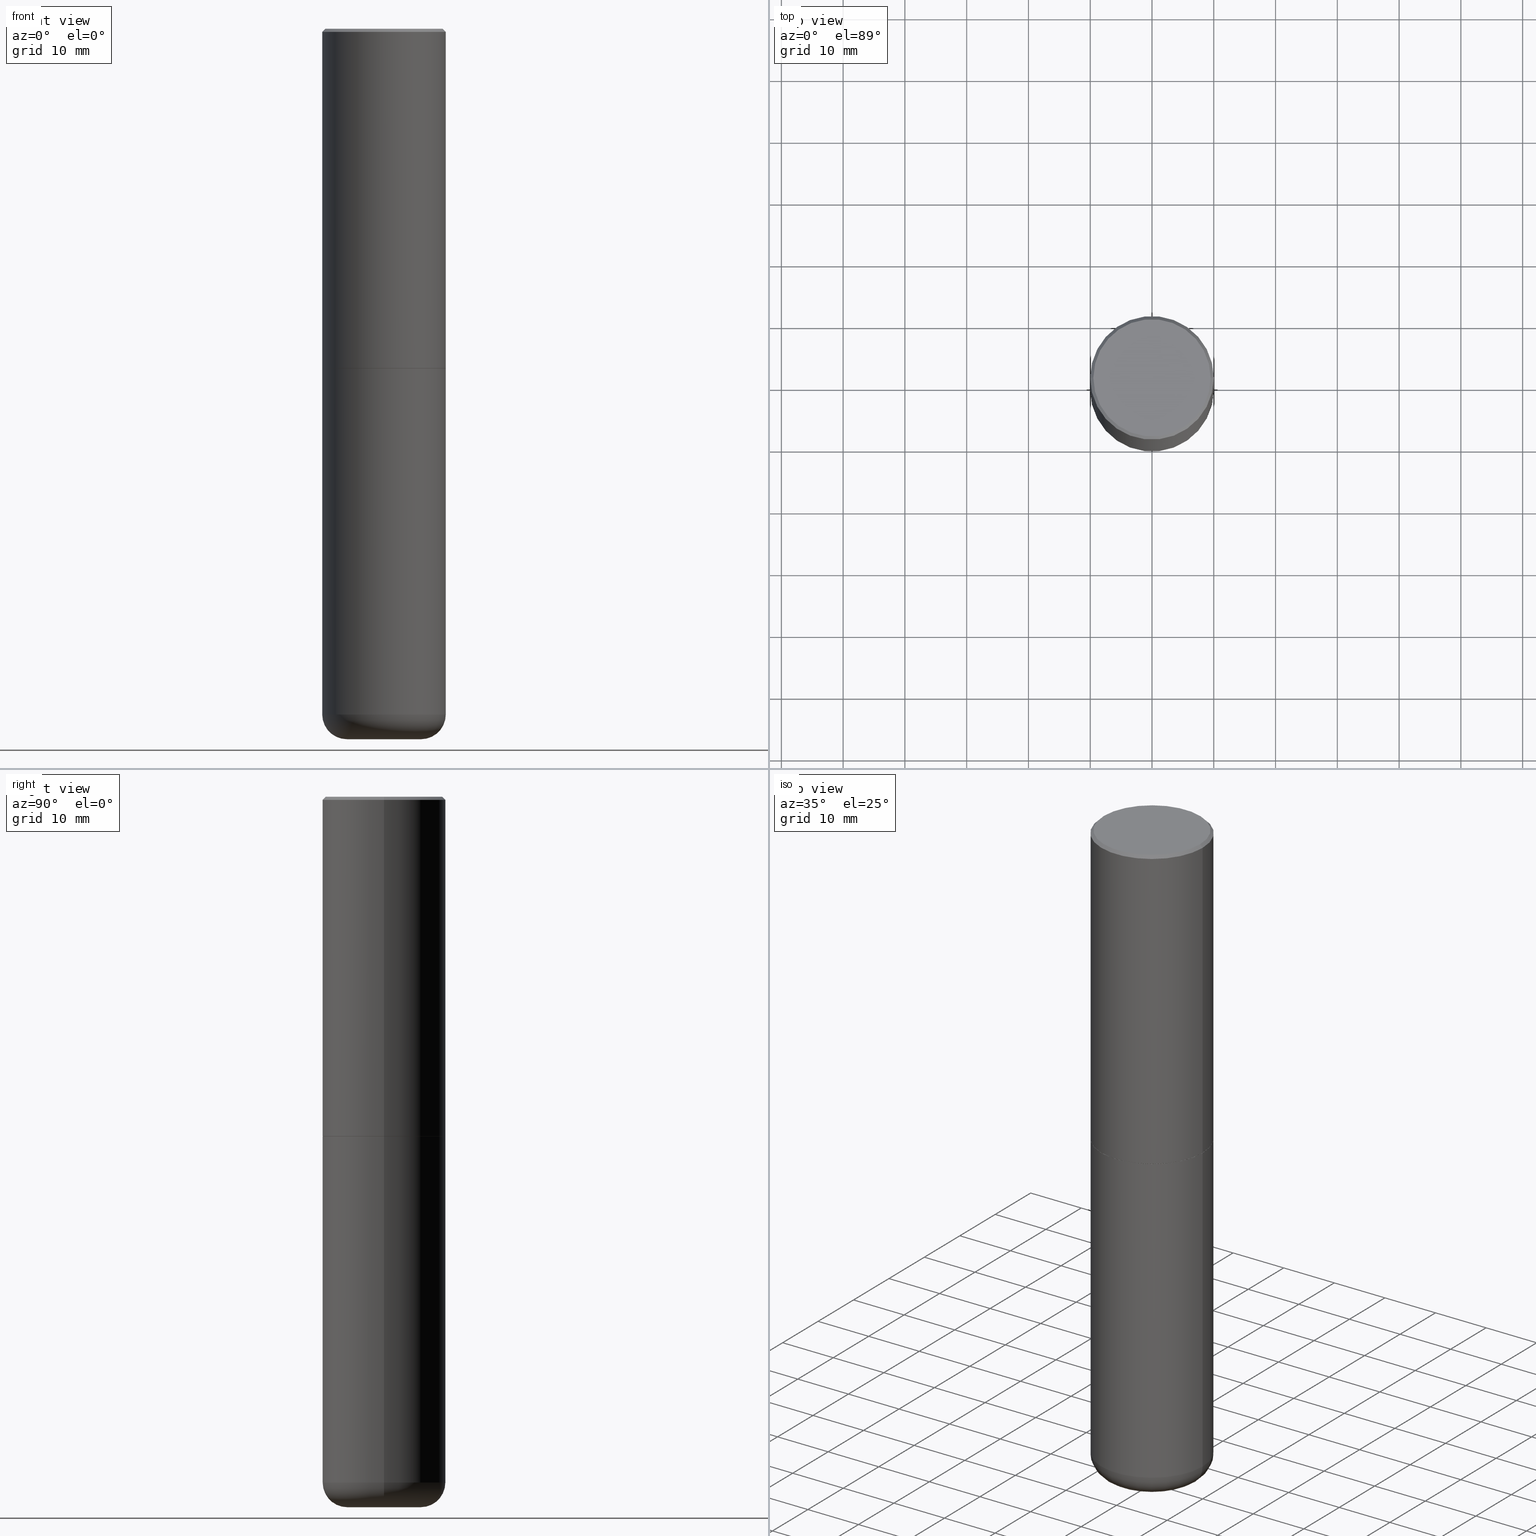
[diagram: canonical four-view strip — front | top / right | iso, engineering-drawing reading convention]
A machine part, canonical four-view strip (front | top / right | iso — engineering-drawing reading convention). The complete STEP part file that produces these views, byte-faithful:
ISO-10303-21;
HEADER;
FILE_DESCRIPTION (( 'STEP AP203' ),
    '1' );
FILE_NAME ('74839.STEP',
    '2024-05-02T19:22:55',
    ( '' ),
    ( '' ),
    'SwSTEP 2.0',
    'SolidWorks 2023',
    '' );
FILE_SCHEMA (( 'CONFIG_CONTROL_DESIGN' ));
ENDSEC;

DATA;
#1 = EDGE_CURVE ( 'NONE', #216, #47, #155, .T. ) ;
#2 = CARTESIAN_POINT ( 'NONE',  ( -0.3937000000000002164, 2.797406750687515970E-15, -1.936584745033357576E-29 ) ) ;
#3 = CARTESIAN_POINT ( 'NONE',  ( -0.3937000000000001054, -1.246071584819091497E-14, -4.370099999999998985 ) ) ;
#4 = CARTESIAN_POINT ( 'NONE',  ( 0.3937000000000002164, -2.749192406205084794E-15, 1.919750796630861012E-29 ) ) ;
#5 = PERSON ( 'UNSPECIFIED', 'UNSPECIFIED', 'UNSPECIFIED', ('UNSPECIFIED'), ('UNSPECIFIED'), ('UNSPECIFIED') ) ;
#6 = AXIS2_PLACEMENT_3D ( 'NONE', #39, #125, #124 ) ;
#7 = EDGE_CURVE ( 'NONE', #205, #375, #106, .T. ) ;
#8 = CARTESIAN_POINT ( 'NONE',  ( -5.532412495976664402E-45, 7.898818803016371119E-31, 2.262311619753217762E-16 ) ) ;
#9 = DIRECTION ( 'NONE',  ( -2.445468806185136597E-29, 3.491481338843145583E-15, 1.000000000000000000 ) ) ;
#10 = CARTESIAN_POINT ( 'NONE',  ( 4.890937612370294178E-31, -6.982962677686321191E-17, -0.02000000000000008715 ) ) ;
#11 = DIRECTION ( 'NONE',  ( -6.982962677686266711E-15, -1.000000000000000000, 3.491481338843145583E-15 ) ) ;
#12 = PERSON_AND_ORGANIZATION ( #5, #132 ) ;
#13 = LINE ( 'NONE', #203, #262 ) ;
#14 = CYLINDRICAL_SURFACE ( 'NONE', #133, 0.3937000000000001054 ) ;
#15 = VECTOR ( 'NONE', #129, 39.37007874015748143 ) ;
#16 = PERSON_AND_ORGANIZATION ( #5, #132 ) ;
#17 = DIRECTION ( 'NONE',  ( 1.000000000000000000, -6.982962677686261977E-15, 0.000000000000000000 ) ) ;
#18 = DIRECTION ( 'NONE',  ( 1.000000000000000000, -6.982962677686268288E-15, 0.000000000000000000 ) ) ;
#19 = CARTESIAN_POINT ( 'NONE',  ( 0.3937000000000001054, -2.770807688499516128E-15, -0.02000000000000008715 ) ) ;
#20 = ORIENTED_EDGE ( 'NONE', *, *, #402, .F. ) ;
#21 = DATE_AND_TIME ( #86, #415 ) ;
#22 = ADVANCED_FACE ( 'NONE', ( #107 ), #140, .T. ) ;
#23 = CARTESIAN_POINT ( 'NONE',  ( -5.532412495976664402E-45, 7.898818803016371119E-31, 2.262311619753217762E-16 ) ) ;
#24 = PRODUCT_RELATED_PRODUCT_CATEGORY ( 'detail', '', ( #103 ) ) ;
#25 = EDGE_LOOP ( 'NONE', ( #30, #54, #82, #340 ) ) ;
#26 = EDGE_LOOP ( 'NONE', ( #312, #154, #61, #60 ) ) ;
#27 = PRODUCT_DEFINITION_FORMATION_WITH_SPECIFIED_SOURCE ( 'ANY', '', #103, .NOT_KNOWN. ) ;
#28 = EDGE_CURVE ( 'NONE', #350, #225, #344, .T. ) ;
#29 = SECURITY_CLASSIFICATION ( '', '', #307 ) ;
#30 = ORIENTED_EDGE ( 'NONE', *, *, #153, .F. ) ;
#31 = EDGE_CURVE ( 'NONE', #207, #50, #99, .T. ) ;
#32 = CLOSED_SHELL ( 'NONE', ( #147, #159, #352, #273, #214, #22, #382, #234 ) ) ;
#33 = FACE_OUTER_BOUND ( 'NONE', #300, .T. ) ;
#34 = CARTESIAN_POINT ( 'NONE',  ( -0.3926999999999999935, -4.770152367801032067E-15, -2.165399999999999547 ) ) ;
#35 = CARTESIAN_POINT ( 'NONE',  ( -0.3926999999999999935, -4.764853913452808876E-15, -2.165399999999999547 ) ) ;
#36 = VECTOR ( 'NONE', #306, 39.37007874015748143 ) ;
#37 = AXIS2_PLACEMENT_3D ( 'NONE', #75, #199, #330 ) ;
#38 = DIRECTION ( 'NONE',  ( -2.445468806185136877E-29, 3.491481338843145188E-15, 1.000000000000000000 ) ) ;
#39 = CARTESIAN_POINT ( 'NONE',  ( 0.000000000000000000, 0.000000000000000000, 0.000000000000000000 ) ) ;
#40 = APPROVAL_ROLE ( '' ) ;
#41 = DIRECTION ( 'NONE',  ( -1.000000000000000000, 6.982962677686265922E-15, -4.876176775795935793E-29 ) ) ;
#42 = CARTESIAN_POINT ( 'NONE',  ( 0.2362000000000000766, -1.745740669421572042E-14, -4.527599999999999625 ) ) ;
#43 = DIRECTION ( 'NONE',  ( -1.000000000000000000, 7.105427357601006592E-15, 0.000000000000000000 ) ) ;
#44 = CONICAL_SURFACE ( 'NONE', #409, 0.3937000000000001054, 0.7853981633974453924 ) ;
#45 = AXIS2_PLACEMENT_3D ( 'NONE', #233, #266, #361 ) ;
#46 = APPROVAL_DATE_TIME ( #333, #363 ) ;
#47 = VERTEX_POINT ( 'NONE', #3 ) ;
#48 = ORIENTED_EDGE ( 'NONE', *, *, #104, .T. ) ;
#49 = DATE_AND_TIME ( #339, #359 ) ;
#50 = VERTEX_POINT ( 'NONE', #136 ) ;
#51 = CIRCLE ( 'NONE', #315, 0.3937000000000000499 ) ;
#52 = ORIENTED_EDGE ( 'NONE', *, *, #77, .F. ) ;
#53 = COORDINATED_UNIVERSAL_TIME_OFFSET ( 5, 0, .BEHIND. ) ;
#54 = ORIENTED_EDGE ( 'NONE', *, *, #302, .T. ) ;
#55 = DIRECTION ( 'NONE',  ( 1.000000000000000000, -6.982962677686266711E-15, 4.876176775795935793E-29 ) ) ;
#56 = EDGE_LOOP ( 'NONE', ( #369, #310 ) ) ;
#57 = ORIENTED_EDGE ( 'NONE', *, *, #1, .T. ) ;
#58 = DIRECTION ( 'NONE',  ( -2.445468806185136597E-29, 3.491481338843145583E-15, 1.000000000000000000 ) ) ;
#59 =( CONVERSION_BASED_UNIT ( 'INCH', #347 ) LENGTH_UNIT ( ) NAMED_UNIT ( #156 ) );
#60 = ORIENTED_EDGE ( 'NONE', *, *, #385, .F. ) ;
#61 = ORIENTED_EDGE ( 'NONE', *, *, #77, .T. ) ;
#62 = AXIS2_PLACEMENT_3D ( 'NONE', #23, #116, #80 ) ;
#63 = EDGE_CURVE ( 'NONE', #213, #47, #388, .T. ) ;
#64 = CARTESIAN_POINT ( 'NONE',  ( 4.890937612370294178E-31, -6.982962677686321191E-17, -0.02000000000000008715 ) ) ;
#65 = EDGE_CURVE ( 'NONE', #47, #412, #13, .T. ) ;
#66 = CARTESIAN_POINT ( 'NONE',  ( 5.295418152913293224E-29, -7.560453691130945845E-15, -2.165399999999999547 ) ) ;
#67 = CARTESIAN_POINT ( 'NONE',  ( -0.3937000000000001054, 2.679362779428220707E-15, -0.02000000000000008715 ) ) ;
#68 = CARTESIAN_POINT ( 'NONE',  ( -0.3937000000000000499, -8.611881394317173410E-15, -2.165399999999999547 ) ) ;
#69 = CONICAL_SURFACE ( 'NONE', #367, 0.3926999999999999935, 0.7853981633975507526 ) ;
#70 = APPROVAL ( #413, 'UNSPECIFIED' ) ;
#71 = CARTESIAN_POINT ( 'NONE',  ( 0.3937000000000001054, -2.749192406205084005E-15, 1.919750796630860452E-29 ) ) ;
#72 = CARTESIAN_POINT ( 'NONE',  ( 0.3926999999999999935, -1.030266313465834305E-14, -2.165399999999999547 ) ) ;
#73 = PLANE ( 'NONE',  #244 ) ;
#74 = FACE_OUTER_BOUND ( 'NONE', #279, .T. ) ;
#75 = CARTESIAN_POINT ( 'NONE',  ( 5.292972684107107621E-29, -7.556962209792102838E-15, -2.164399999999999658 ) ) ;
#76 = CARTESIAN_POINT ( 'NONE',  ( 5.295418152913293224E-29, -7.560453691130945845E-15, -2.165399999999999547 ) ) ;
#77 = EDGE_CURVE ( 'NONE', #288, #216, #113, .T. ) ;
#78 = FACE_OUTER_BOUND ( 'NONE', #215, .T. ) ;
#79 = CARTESIAN_POINT ( 'NONE',  ( -0.2362000000000000210, -1.357982065701307100E-14, -4.370099999999998985 ) ) ;
#80 = DIRECTION ( 'NONE',  ( 1.000000000000000000, -6.982962677686266711E-15, 4.877734241229876808E-29 ) ) ;
#81 = ORIENTED_EDGE ( 'NONE', *, *, #305, .F. ) ;
#82 = ORIENTED_EDGE ( 'NONE', *, *, #222, .T. ) ;
#83 = APPLICATION_CONTEXT ( 'configuration controlled 3d designs of mechanical parts and assemblies' ) ;
#84 = EDGE_CURVE ( 'NONE', #412, #119, #126, .T. ) ;
#85 = ORIENTED_EDGE ( 'NONE', *, *, #65, .T. ) ;
#86 = CALENDAR_DATE ( 2024, 2, 5 ) ;
#87 = ORIENTED_EDGE ( 'NONE', *, *, #31, .F. ) ;
#88 = CARTESIAN_POINT ( 'NONE',  ( 5.295418152913293224E-29, -7.560453691130945845E-15, -2.165399999999999547 ) ) ;
#89 = TOROIDAL_SURFACE ( 'NONE', #322, 0.2362000000000000210, 0.1575000000000000844 ) ;
#90 = ORIENTED_EDGE ( 'NONE', *, *, #1, .F. ) ;
#91 = VECTOR ( 'NONE', #38, 39.37007874015748143 ) ;
#92 = ORIENTED_EDGE ( 'NONE', *, *, #271, .T. ) ;
#93 = AXIS2_PLACEMENT_3D ( 'NONE', #200, #221, #197 ) ;
#94 = ORIENTED_EDGE ( 'NONE', *, *, #329, .T. ) ;
#95 = AXIS2_PLACEMENT_3D ( 'NONE', #404, #301, #321 ) ;
#96 = EDGE_CURVE ( 'NONE', #207, #375, #297, .T. ) ;
#97 = MANIFOLD_SOLID_BREP ( 'Body-Move/Copy2[2]', #32 ) ;
#98 = EDGE_LOOP ( 'NONE', ( #217, #142, #92, #405 ) ) ;
#99 = CIRCLE ( 'NONE', #37, 0.3937000000000002720 ) ;
#100 = LOCAL_TIME ( 15, 22, 55.00000000000000000, #342 ) ;
#101 = CARTESIAN_POINT ( 'NONE',  ( 0.3937000000000001054, -1.800731500508351219E-14, -4.370099999999998985 ) ) ;
#102 = ORIENTED_EDGE ( 'NONE', *, *, #7, .F. ) ;
#103 = PRODUCT ( '74839', '74839', '', ( #158 ) ) ;
#104 = EDGE_CURVE ( 'NONE', #50, #205, #358, .T. ) ;
#105 = VECTOR ( 'NONE', #151, 39.37007874015748143 ) ;
#106 = CIRCLE ( 'NONE', #118, 0.3937000000000001054 ) ;
#107 = FACE_OUTER_BOUND ( 'NONE', #25, .T. ) ;
#108 = ADVANCED_FACE ( 'NONE', ( #232 ), #73, .F. ) ;
#109 = CALENDAR_DATE ( 2024, 2, 5 ) ;
#110 = DIRECTION ( 'NONE',  ( 7.105427357601001859E-15, 1.000000000000000000, -3.491481338843145583E-15 ) ) ;
#111 = VERTEX_POINT ( 'NONE', #72 ) ;
#112 = EDGE_LOOP ( 'NONE', ( #281, #48, #146, #184 ) ) ;
#113 = CIRCLE ( 'NONE', #357, 0.1575000000000000566 ) ;
#114 = PERSON_AND_ORGANIZATION ( #5, #132 ) ;
#115 = DIRECTION ( 'NONE',  ( 1.000000000000000000, -6.982962677686266711E-15, 4.876176775795935793E-29 ) ) ;
#116 = DIRECTION ( 'NONE',  ( -2.445468806185136597E-29, 3.491481338843145583E-15, 1.000000000000000000 ) ) ;
#117 = PERSON_AND_ORGANIZATION ( #5, #132 ) ;
#118 = AXIS2_PLACEMENT_3D ( 'NONE', #309, #401, #368 ) ;
#119 = VERTEX_POINT ( 'NONE', #198 ) ;
#120 = COORDINATED_UNIVERSAL_TIME_OFFSET ( 5, 0, .BEHIND. ) ;
#121 = DIRECTION ( 'NONE',  ( 1.000000000000000000, -6.982962677686261977E-15, 4.883557194083110659E-29 ) ) ;
#122 = AXIS2_PLACEMENT_3D ( 'NONE', #373, #178, #212 ) ;
#123 = DIRECTION ( 'NONE',  ( 1.000000000000000000, -6.982962677686265133E-15, 0.000000000000000000 ) ) ;
#124 = DIRECTION ( 'NONE',  ( 1.000000000000000000, -6.982962677686266711E-15, 4.876176775795935793E-29 ) ) ;
#125 = DIRECTION ( 'NONE',  ( -2.445468806185136597E-29, 3.491481338843145583E-15, 1.000000000000000000 ) ) ;
#126 = CIRCLE ( 'NONE', #95, 0.3937000000000000499 ) ;
#127 = FACE_OUTER_BOUND ( 'NONE', #112, .T. ) ;
#128 = CARTESIAN_POINT ( 'NONE',  ( 0.3736999999999999211, -2.667287895133367964E-15, 2.262311619753402158E-16 ) ) ;
#129 = DIRECTION ( 'NONE',  ( -2.445468806185136877E-29, 3.491481338843145188E-15, 1.000000000000000000 ) ) ;
#130 = DIRECTION ( 'NONE',  ( -2.438088387897960049E-29, 3.491481338843145188E-15, 1.000000000000000000 ) ) ;
#131 = UNCERTAINTY_MEASURE_WITH_UNIT (LENGTH_MEASURE( 1.000000000000000082E-05 ), #59, 'distance_accuracy_value', 'NONE');
#132 = ORGANIZATION ( 'UNSPECIFIED', 'UNSPECIFIED', '' ) ;
#133 = AXIS2_PLACEMENT_3D ( 'NONE', #278, #275, #55 ) ;
#134 = DIRECTION ( 'NONE',  ( -1.000000000000000000, 6.982962677686265922E-15, -4.876176775795935793E-29 ) ) ;
#135 = PRODUCT_DEFINITION ( 'UNKNOWN', '', #27, #195 ) ;
#136 = CARTESIAN_POINT ( 'NONE',  ( -0.3937000000000002720, -1.015989167596965718E-15, -2.164399999999999658 ) ) ;
#137 =( GEOMETRIC_REPRESENTATION_CONTEXT ( 3 ) GLOBAL_UNCERTAINTY_ASSIGNED_CONTEXT ( ( #131 ) ) GLOBAL_UNIT_ASSIGNED_CONTEXT ( ( #59, #149, #139 ) ) REPRESENTATION_CONTEXT ( 'NONE', 'WORKASPACE' ) );
#138 = LINE ( 'NONE', #19, #186 ) ;
#139 =( NAMED_UNIT ( * ) SI_UNIT ( $, .STERADIAN. ) SOLID_ANGLE_UNIT ( ) );
#140 = CONICAL_SURFACE ( 'NONE', #293, 0.3926999999999999935, 0.7853981633975507526 ) ;
#141 = EDGE_LOOP ( 'NONE', ( #285, #164, #314, #102 ) ) ;
#142 = ORIENTED_EDGE ( 'NONE', *, *, #161, .T. ) ;
#143 = EDGE_CURVE ( 'NONE', #288, #213, #381, .T. ) ;
#144 = DIRECTION ( 'NONE',  ( 1.000000000000000000, 0.000000000000000000, 0.000000000000000000 ) ) ;
#145 = CARTESIAN_POINT ( 'NONE',  ( 1.068694322990966450E-28, -1.525812259887842897E-14, -4.370099999999998985 ) ) ;
#146 = ORIENTED_EDGE ( 'NONE', *, *, #271, .F. ) ;
#147 = ADVANCED_FACE ( 'NONE', ( #78 ), #69, .T. ) ;
#148 = CARTESIAN_POINT ( 'NONE',  ( -0.3937000000000001054, 2.679362779428220707E-15, -0.02000000000000008715 ) ) ;
#149 =( NAMED_UNIT ( * ) PLANE_ANGLE_UNIT ( ) SI_UNIT ( $, .RADIAN. ) );
#150 = APPLICATION_PROTOCOL_DEFINITION ( 'international standard', 'config_control_design', 1994, #295 ) ;
#151 = DIRECTION ( 'NONE',  ( -0.7071067811865454633, 2.468850131082235367E-15, -0.7071067811865495711 ) ) ;
#152 = LOCAL_TIME ( 15, 22, 55.00000000000000000, #296 ) ;
#153 = EDGE_CURVE ( 'NONE', #238, #50, #326, .T. ) ;
#154 = ORIENTED_EDGE ( 'NONE', *, *, #193, .T. ) ;
#155 = CIRCLE ( 'NONE', #274, 0.3937000000000001054 ) ;
#156 = DIMENSIONAL_EXPONENTS ( 1.000000000000000000, 0.000000000000000000, 0.000000000000000000, 0.000000000000000000, 0.000000000000000000, 0.000000000000000000, 0.000000000000000000 ) ;
#157 = APPROVAL_PERSON_ORGANIZATION ( #294, #243, #40 ) ;
#158 = MECHANICAL_CONTEXT ( 'NONE', #295, 'mechanical' ) ;
#159 = ADVANCED_FACE ( 'NONE', ( #127 ), #397, .T. ) ;
#160 = FACE_OUTER_BOUND ( 'NONE', #98, .T. ) ;
#161 = EDGE_CURVE ( 'NONE', #225, #375, #138, .T. ) ;
#162 = DIRECTION ( 'NONE',  ( -1.000000000000000000, 6.982962677686266711E-15, 0.000000000000000000 ) ) ;
#163 = EDGE_CURVE ( 'NONE', #225, #350, #416, .T. ) ;
#164 = ORIENTED_EDGE ( 'NONE', *, *, #252, .T. ) ;
#165 = AXIS2_PLACEMENT_3D ( 'NONE', #79, #110, #43 ) ;
#166 = ADVANCED_FACE ( 'NONE', ( #175 ), #14, .T. ) ;
#167 = DIRECTION ( 'NONE',  ( -2.445468806185136597E-29, 3.491481338843145583E-15, 1.000000000000000000 ) ) ;
#168 = DATE_AND_TIME ( #181, #100 ) ;
#169 = CC_DESIGN_PERSON_AND_ORGANIZATION_ASSIGNMENT ( #201, #249, ( #27 ) ) ;
#170 = AXIS2_PLACEMENT_3D ( 'NONE', #248, #187, #317 ) ;
#171 = AXIS2_PLACEMENT_3D ( 'NONE', #206, #270, #115 ) ;
#172 = DIRECTION ( 'NONE',  ( 2.438088387897960049E-29, -3.491481338843145188E-15, -1.000000000000000000 ) ) ;
#173 = DIRECTION ( 'NONE',  ( -2.445468806185136597E-29, 3.491481338843145583E-15, 1.000000000000000000 ) ) ;
#174 = EDGE_LOOP ( 'NONE', ( #376, #188 ) ) ;
#175 = FACE_OUTER_BOUND ( 'NONE', #286, .T. ) ;
#176 = PERSON_AND_ORGANIZATION_ROLE ( 'design_supplier' ) ;
#177 = ORIENTED_EDGE ( 'NONE', *, *, #418, .F. ) ;
#178 = DIRECTION ( 'NONE',  ( -2.445468806185136597E-29, 3.491481338843145583E-15, 1.000000000000000000 ) ) ;
#179 = VECTOR ( 'NONE', #194, 39.37007874015748143 ) ;
#180 = ORIENTED_EDGE ( 'NONE', *, *, #28, .F. ) ;
#181 = CALENDAR_DATE ( 2024, 2, 5 ) ;
#182 = ORIENTED_EDGE ( 'NONE', *, *, #222, .F. ) ;
#183 = PERSON_AND_ORGANIZATION ( #5, #132 ) ;
#184 = ORIENTED_EDGE ( 'NONE', *, *, #96, .F. ) ;
#185 = CC_DESIGN_PERSON_AND_ORGANIZATION_ASSIGNMENT ( #114, #239, ( #29 ) ) ;
#186 = VECTOR ( 'NONE', #370, 39.37007874015748143 ) ;
#187 = DIRECTION ( 'NONE',  ( -2.445468806185136597E-29, 3.491481338843145583E-15, 1.000000000000000000 ) ) ;
#188 = ORIENTED_EDGE ( 'NONE', *, *, #193, .F. ) ;
#189 = LINE ( 'NONE', #191, #179 ) ;
#190 = CIRCLE ( 'NONE', #122, 0.2362000000000000766 ) ;
#191 = CARTESIAN_POINT ( 'NONE',  ( 0.3926999999999999935, -1.030266313465834305E-14, -2.165399999999999547 ) ) ;
#192 = CARTESIAN_POINT ( 'NONE',  ( 5.295418152913293224E-29, -7.560453691130945845E-15, -2.165399999999999547 ) ) ;
#193 = EDGE_CURVE ( 'NONE', #213, #288, #190, .T. ) ;
#194 = DIRECTION ( 'NONE',  ( 0.7071067811866199593, -2.468850131083015945E-15, 0.7071067811864750752 ) ) ;
#195 = DESIGN_CONTEXT ( 'detailed design', #83, 'design' ) ;
#196 = CARTESIAN_POINT ( 'NONE',  ( 5.295418152913293224E-29, -7.560453691130945845E-15, -2.165399999999999547 ) ) ;
#197 = DIRECTION ( 'NONE',  ( 1.000000000000000000, -6.982962677686261977E-15, 0.000000000000000000 ) ) ;
#198 = CARTESIAN_POINT ( 'NONE',  ( 0.3937000000000000499, -1.030964609733602906E-14, -2.165399999999999547 ) ) ;
#199 = DIRECTION ( 'NONE',  ( -2.445468806185136597E-29, 3.491481338843145583E-15, 1.000000000000000000 ) ) ;
#200 = CARTESIAN_POINT ( 'NONE',  ( 1.068694322990966450E-28, -1.525812259887842897E-14, -4.370099999999998985 ) ) ;
#201 = PERSON_AND_ORGANIZATION ( #5, #132 ) ;
#202 = CONICAL_SURFACE ( 'NONE', #261, 0.3937000000000001054, 0.7853981633974453924 ) ;
#203 = CARTESIAN_POINT ( 'NONE',  ( -0.3937000000000001054, 2.797406750687515181E-15, -1.936584745033357016E-29 ) ) ;
#204 = AXIS2_PLACEMENT_3D ( 'NONE', #192, #130, #364 ) ;
#205 = VERTEX_POINT ( 'NONE', #148 ) ;
#206 = CARTESIAN_POINT ( 'NONE',  ( 0.000000000000000000, 0.000000000000000000, 0.000000000000000000 ) ) ;
#207 = VERTEX_POINT ( 'NONE', #407 ) ;
#208 = EDGE_LOOP ( 'NONE', ( #57, #85, #20, #177 ) ) ;
#209 = APPROVAL_ROLE ( '' ) ;
#210 = ORIENTED_EDGE ( 'NONE', *, *, #153, .T. ) ;
#211 = PERSON_AND_ORGANIZATION_ROLE ( 'creator' ) ;
#212 = DIRECTION ( 'NONE',  ( 1.000000000000000000, -6.982962677686262766E-15, 0.000000000000000000 ) ) ;
#213 = VERTEX_POINT ( 'NONE', #336 ) ;
#214 = ADVANCED_FACE ( 'NONE', ( #227 ), #389, .T. ) ;
#215 = EDGE_LOOP ( 'NONE', ( #343, #210, #87, #182 ) ) ;
#216 = VERTEX_POINT ( 'NONE', #101 ) ;
#217 = ORIENTED_EDGE ( 'NONE', *, *, #163, .F. ) ;
#218 = FACE_OUTER_BOUND ( 'NONE', #208, .T. ) ;
#219 = MANIFOLD_SOLID_BREP ( 'Body-Move/Copy2[1]', #316 ) ;
#220 = CC_DESIGN_APPROVAL ( #243, ( #27 ) ) ;
#221 = DIRECTION ( 'NONE',  ( -2.445468806185136597E-29, 3.491481338843145583E-15, 1.000000000000000000 ) ) ;
#222 = EDGE_CURVE ( 'NONE', #111, #207, #189, .T. ) ;
#223 = DIRECTION ( 'NONE',  ( 2.438088387897960049E-29, -3.491481338843145188E-15, -1.000000000000000000 ) ) ;
#224 = CIRCLE ( 'NONE', #45, 0.3937000000000001054 ) ;
#225 = VERTEX_POINT ( 'NONE', #128 ) ;
#226 = CC_DESIGN_DATE_AND_TIME_ASSIGNMENT ( #168, #228, ( #135 ) ) ;
#227 = FACE_OUTER_BOUND ( 'NONE', #141, .T. ) ;
#228 = DATE_TIME_ROLE ( 'creation_date' ) ;
#229 = DIRECTION ( 'NONE',  ( 2.438088387897960049E-29, -3.491481338843145188E-15, -1.000000000000000000 ) ) ;
#230 = ADVANCED_FACE ( 'NONE', ( #255 ), #258, .T. ) ;
#231 = CC_DESIGN_APPROVAL ( #70, ( #135 ) ) ;
#232 = FACE_OUTER_BOUND ( 'NONE', #56, .T. ) ;
#233 = CARTESIAN_POINT ( 'NONE',  ( 4.890937612370294178E-31, -6.982962677686321191E-17, -0.02000000000000008715 ) ) ;
#234 = ADVANCED_FACE ( 'NONE', ( #33 ), #257, .F. ) ;
#235 = SHAPE_DEFINITION_REPRESENTATION ( #242, #355 ) ;
#236 = AXIS2_PLACEMENT_3D ( 'NONE', #8, #240, #362 ) ;
#237 = ORIENTED_EDGE ( 'NONE', *, *, #161, .F. ) ;
#238 = VERTEX_POINT ( 'NONE', #35 ) ;
#239 = PERSON_AND_ORGANIZATION_ROLE ( 'classification_officer' ) ;
#240 = DIRECTION ( 'NONE',  ( -2.445468806185136597E-29, 3.491481338843145583E-15, 1.000000000000000000 ) ) ;
#241 = EDGE_LOOP ( 'NONE', ( #379, #406, #90, #52 ) ) ;
#242 = PRODUCT_DEFINITION_SHAPE ( 'NONE', 'NONE',  #135 ) ;
#243 = APPROVAL ( #398, 'UNSPECIFIED' ) ;
#244 = AXIS2_PLACEMENT_3D ( 'NONE', #76, #172, #134 ) ;
#245 =( LENGTH_UNIT ( ) NAMED_UNIT ( * ) SI_UNIT ( $, .METRE. ) );
#246 = ORIENTED_EDGE ( 'NONE', *, *, #28, .T. ) ;
#247 = DIRECTION ( 'NONE',  ( 1.000000000000000000, -6.982962677686268288E-15, 0.000000000000000000 ) ) ;
#248 = CARTESIAN_POINT ( 'NONE',  ( 1.068694322990966450E-28, -1.525812259887842897E-14, -4.370099999999998985 ) ) ;
#249 = PERSON_AND_ORGANIZATION_ROLE ( 'creator' ) ;
#250 = PLANE ( 'NONE',  #204 ) ;
#251 = VECTOR ( 'NONE', #292, 39.37007874015748143 ) ;
#252 = EDGE_CURVE ( 'NONE', #50, #207, #284, .T. ) ;
#253 = DIRECTION ( 'NONE',  ( -2.445468806185136597E-29, 3.491481338843145583E-15, 1.000000000000000000 ) ) ;
#254 = DIRECTION ( 'NONE',  ( -2.445468806185136597E-29, 3.491481338843145583E-15, 1.000000000000000000 ) ) ;
#255 = FACE_OUTER_BOUND ( 'NONE', #174, .T. ) ;
#256 = CC_DESIGN_SECURITY_CLASSIFICATION ( #29, ( #27 ) ) ;
#257 = PLANE ( 'NONE',  #298 ) ;
#258 = PLANE ( 'NONE',  #283 ) ;
#259 = CARTESIAN_POINT ( 'NONE',  ( 1.107210456688382298E-28, -1.580803090974622389E-14, -4.527599999999999625 ) ) ;
#260 = DIRECTION ( 'NONE',  ( -2.445468806185136597E-29, 3.491481338843145583E-15, 1.000000000000000000 ) ) ;
#261 = AXIS2_PLACEMENT_3D ( 'NONE', #64, #387, #162 ) ;
#262 = VECTOR ( 'NONE', #335, 39.37007874015748143 ) ;
#263 = DATE_AND_TIME ( #327, #152 ) ;
#264 = APPROVAL_STATUS ( 'not_yet_approved' ) ;
#265 = ORIENTED_EDGE ( 'NONE', *, *, #385, .T. ) ;
#266 = DIRECTION ( 'NONE',  ( -2.445468806185136597E-29, 3.491481338843145583E-15, 1.000000000000000000 ) ) ;
#267 = COORDINATED_UNIVERSAL_TIME_OFFSET ( 5, 0, .BEHIND. ) ;
#268 = DIRECTION ( 'NONE',  ( 1.000000000000000000, -6.982962677686259611E-15, 0.000000000000000000 ) ) ;
#269 = CC_DESIGN_DATE_AND_TIME_ASSIGNMENT ( #21, #304, ( #29 ) ) ;
#270 = DIRECTION ( 'NONE',  ( -2.445468806185136597E-29, 3.491481338843145583E-15, 1.000000000000000000 ) ) ;
#271 = EDGE_CURVE ( 'NONE', #375, #205, #224, .T. ) ;
#272 = TOROIDAL_SURFACE ( 'NONE', #170, 0.2362000000000000210, 0.1575000000000000844 ) ;
#273 = ADVANCED_FACE ( 'NONE', ( #74 ), #44, .T. ) ;
#274 = AXIS2_PLACEMENT_3D ( 'NONE', #145, #173, #17 ) ;
#275 = DIRECTION ( 'NONE',  ( -2.445468806185136597E-29, 3.491481338843145583E-15, 1.000000000000000000 ) ) ;
#276 = PERSON_AND_ORGANIZATION_ROLE ( 'design_owner' ) ;
#277 = DIRECTION ( 'NONE',  ( -2.445468806185136597E-29, 3.491481338843145583E-15, 1.000000000000000000 ) ) ;
#278 = CARTESIAN_POINT ( 'NONE',  ( 0.000000000000000000, 0.000000000000000000, 0.000000000000000000 ) ) ;
#279 = EDGE_LOOP ( 'NONE', ( #237, #180, #94, #345 ) ) ;
#280 = APPROVAL_DATE_TIME ( #263, #243 ) ;
#281 = ORIENTED_EDGE ( 'NONE', *, *, #31, .T. ) ;
#282 = LOCAL_TIME ( 15, 22, 55.00000000000000000, #267 ) ;
#283 = AXIS2_PLACEMENT_3D ( 'NONE', #360, #223, #391 ) ;
#284 = CIRCLE ( 'NONE', #411, 0.3937000000000002720 ) ;
#285 = ORIENTED_EDGE ( 'NONE', *, *, #104, .F. ) ;
#286 = EDGE_LOOP ( 'NONE', ( #408, #265, #338, #384 ) ) ;
#287 = APPLICATION_PROTOCOL_DEFINITION ( 'international standard', 'config_control_design', 1994, #83 ) ;
#288 = VERTEX_POINT ( 'NONE', #42 ) ;
#289 = CARTESIAN_POINT ( 'NONE',  ( 0.3937000000000001054, -2.770807688499516128E-15, -0.02000000000000008715 ) ) ;
#290 = AXIS2_PLACEMENT_3D ( 'NONE', #313, #58, #390 ) ;
#291 = FACE_OUTER_BOUND ( 'NONE', #26, .T. ) ;
#292 = DIRECTION ( 'NONE',  ( -0.7071067811866199593, 7.493145998870616062E-15, 0.7071067811864750752 ) ) ;
#293 = AXIS2_PLACEMENT_3D ( 'NONE', #366, #277, #299 ) ;
#294 = PERSON_AND_ORGANIZATION ( #5, #132 ) ;
#295 = APPLICATION_CONTEXT ( 'configuration controlled 3d designs of mechanical parts and assemblies' ) ;
#296 = COORDINATED_UNIVERSAL_TIME_OFFSET ( 5, 0, .BEHIND. ) ;
#297 = LINE ( 'NONE', #4, #15 ) ;
#298 = AXIS2_PLACEMENT_3D ( 'NONE', #396, #229, #41 ) ;
#299 = DIRECTION ( 'NONE',  ( 1.000000000000000000, -6.982962677686268288E-15, 0.000000000000000000 ) ) ;
#300 = EDGE_LOOP ( 'NONE', ( #246, #348 ) ) ;
#301 = DIRECTION ( 'NONE',  ( -2.445468806185136597E-29, 3.491481338843145583E-15, 1.000000000000000000 ) ) ;
#302 = EDGE_CURVE ( 'NONE', #238, #111, #334, .T. ) ;
#303 = CARTESIAN_POINT ( 'NONE',  ( 0.2362000000000000210, -1.690749838334792550E-14, -4.370099999999998985 ) ) ;
#304 = DATE_TIME_ROLE ( 'classification_date' ) ;
#305 = EDGE_CURVE ( 'NONE', #111, #238, #392, .T. ) ;
#306 = DIRECTION ( 'NONE',  ( -2.445468806185136877E-29, 3.491481338843145188E-15, 1.000000000000000000 ) ) ;
#307 = SECURITY_CLASSIFICATION_LEVEL ( 'unclassified' ) ;
#308 = APPROVAL_DATE_TIME ( #49, #70 ) ;
#309 = CARTESIAN_POINT ( 'NONE',  ( 4.890937612370294178E-31, -6.982962677686321191E-17, -0.02000000000000008715 ) ) ;
#310 = ORIENTED_EDGE ( 'NONE', *, *, #84, .T. ) ;
#311 = PERSON_AND_ORGANIZATION ( #5, #132 ) ;
#312 = ORIENTED_EDGE ( 'NONE', *, *, #63, .F. ) ;
#313 = CARTESIAN_POINT ( 'NONE',  ( 0.000000000000000000, 0.000000000000000000, 0.000000000000000000 ) ) ;
#314 = ORIENTED_EDGE ( 'NONE', *, *, #96, .T. ) ;
#315 = AXIS2_PLACEMENT_3D ( 'NONE', #66, #318, #123 ) ;
#316 = CLOSED_SHELL ( 'NONE', ( #325, #351, #108, #166, #395, #230 ) ) ;
#317 = DIRECTION ( 'NONE',  ( 1.000000000000000000, -6.982962677686261977E-15, 4.883557194083110659E-29 ) ) ;
#318 = DIRECTION ( 'NONE',  ( -2.445468806185136597E-29, 3.491481338843145583E-15, 1.000000000000000000 ) ) ;
#319 = CIRCLE ( 'NONE', #93, 0.3937000000000001054 ) ;
#320 = LINE ( 'NONE', #71, #36 ) ;
#321 = DIRECTION ( 'NONE',  ( 1.000000000000000000, -6.982962677686265133E-15, 0.000000000000000000 ) ) ;
#322 = AXIS2_PLACEMENT_3D ( 'NONE', #399, #254, #121 ) ;
#323 = CARTESIAN_POINT ( 'NONE',  ( 5.292972684107107621E-29, -7.556962209792102838E-15, -2.164399999999999658 ) ) ;
#324 = DIRECTION ( 'NONE',  ( 1.000000000000000000, -6.982962677686268288E-15, 0.000000000000000000 ) ) ;
#325 = ADVANCED_FACE ( 'NONE', ( #218 ), #354, .T. ) ;
#326 = LINE ( 'NONE', #34, #251 ) ;
#327 = CALENDAR_DATE ( 2024, 2, 5 ) ;
#328 = DIRECTION ( 'NONE',  ( -1.000000000000000000, 6.982962677686266711E-15, 0.000000000000000000 ) ) ;
#329 = EDGE_CURVE ( 'NONE', #350, #205, #383, .T. ) ;
#330 = DIRECTION ( 'NONE',  ( 1.000000000000000000, -6.982962677686269077E-15, 0.000000000000000000 ) ) ;
#331 = CC_DESIGN_PERSON_AND_ORGANIZATION_ASSIGNMENT ( #117, #176, ( #27 ) ) ;
#332 = AXIS2_PLACEMENT_3D ( 'NONE', #374, #378, #144 ) ;
#333 = DATE_AND_TIME ( #109, #282 ) ;
#334 = CIRCLE ( 'NONE', #386, 0.3926999999999999935 ) ;
#335 = DIRECTION ( 'NONE',  ( -2.445468806185136877E-29, 3.491481338843145188E-15, 1.000000000000000000 ) ) ;
#336 = CARTESIAN_POINT ( 'NONE',  ( -0.2362000000000000766, -1.329522240803589203E-14, -4.527599999999999625 ) ) ;
#337 = APPROVAL_ROLE ( '' ) ;
#338 = ORIENTED_EDGE ( 'NONE', *, *, #418, .T. ) ;
#339 = CALENDAR_DATE ( 2024, 2, 5 ) ;
#340 = ORIENTED_EDGE ( 'NONE', *, *, #252, .F. ) ;
#341 = APPROVAL_PERSON_ORGANIZATION ( #183, #70, #209 ) ;
#342 = COORDINATED_UNIVERSAL_TIME_OFFSET ( 5, 0, .BEHIND. ) ;
#343 = ORIENTED_EDGE ( 'NONE', *, *, #305, .T. ) ;
#344 = CIRCLE ( 'NONE', #236, 0.3736999999999999211 ) ;
#345 = ORIENTED_EDGE ( 'NONE', *, *, #7, .T. ) ;
#346 = ORIENTED_EDGE ( 'NONE', *, *, #302, .F. ) ;
#347 = LENGTH_MEASURE_WITH_UNIT ( LENGTH_MEASURE( 0.02539999999999999897 ), #245 );
#348 = ORIENTED_EDGE ( 'NONE', *, *, #163, .T. ) ;
#349 = FACE_OUTER_BOUND ( 'NONE', #241, .T. ) ;
#350 = VERTEX_POINT ( 'NONE', #353 ) ;
#351 = ADVANCED_FACE ( 'NONE', ( #349 ), #272, .T. ) ;
#352 = ADVANCED_FACE ( 'NONE', ( #160 ), #202, .T. ) ;
#353 = CARTESIAN_POINT ( 'NONE',  ( -0.3736999999999999211, 2.644447966039789453E-15, 2.262311619753034352E-16 ) ) ;
#354 = CYLINDRICAL_SURFACE ( 'NONE', #290, 0.3937000000000001054 ) ;
#355 = ADVANCED_BREP_SHAPE_REPRESENTATION ( '74839', ( #219, #97, #332 ), #137 ) ;
#356 = AXIS2_PLACEMENT_3D ( 'NONE', #88, #253, #247 ) ;
#357 = AXIS2_PLACEMENT_3D ( 'NONE', #303, #11, #268 ) ;
#358 = LINE ( 'NONE', #2, #91 ) ;
#359 = LOCAL_TIME ( 15, 22, 55.00000000000000000, #120 ) ;
#360 = CARTESIAN_POINT ( 'NONE',  ( 1.107210456688382298E-28, -1.580803090974622389E-14, -4.527599999999999625 ) ) ;
#361 = DIRECTION ( 'NONE',  ( 1.000000000000000000, -6.982962677686266711E-15, 0.000000000000000000 ) ) ;
#362 = DIRECTION ( 'NONE',  ( 1.000000000000000000, -6.982962677686266711E-15, 4.877734241229876808E-29 ) ) ;
#363 = APPROVAL ( #264, 'UNSPECIFIED' ) ;
#364 = DIRECTION ( 'NONE',  ( 1.000000000000000000, -6.982962677686265922E-15, 4.876176775795935793E-29 ) ) ;
#365 = DIRECTION ( 'NONE',  ( 1.000000000000000000, -6.982962677686262766E-15, 0.000000000000000000 ) ) ;
#366 = CARTESIAN_POINT ( 'NONE',  ( 5.295418152913293224E-29, -7.560453691130945845E-15, -2.165399999999999547 ) ) ;
#367 = AXIS2_PLACEMENT_3D ( 'NONE', #196, #9, #324 ) ;
#368 = DIRECTION ( 'NONE',  ( 1.000000000000000000, -6.982962677686266711E-15, 0.000000000000000000 ) ) ;
#369 = ORIENTED_EDGE ( 'NONE', *, *, #402, .T. ) ;
#370 = DIRECTION ( 'NONE',  ( 0.7071067811865454633, -7.319954787623248157E-15, -0.7071067811865495711 ) ) ;
#371 = EDGE_LOOP ( 'NONE', ( #81, #346 ) ) ;
#372 = CARTESIAN_POINT ( 'NONE',  ( 5.295418152913293224E-29, -7.560453691130945845E-15, -2.165399999999999547 ) ) ;
#373 = CARTESIAN_POINT ( 'NONE',  ( 1.107210456688382298E-28, -1.580803090974622389E-14, -4.527599999999999625 ) ) ;
#374 = CARTESIAN_POINT ( 'NONE',  ( 0.000000000000000000, 0.000000000000000000, 0.000000000000000000 ) ) ;
#375 = VERTEX_POINT ( 'NONE', #289 ) ;
#376 = ORIENTED_EDGE ( 'NONE', *, *, #143, .F. ) ;
#377 = DIRECTION ( 'NONE',  ( -2.445468806185136597E-29, 3.491481338843145583E-15, 1.000000000000000000 ) ) ;
#378 = DIRECTION ( 'NONE',  ( 0.000000000000000000, 0.000000000000000000, 1.000000000000000000 ) ) ;
#379 = ORIENTED_EDGE ( 'NONE', *, *, #143, .T. ) ;
#380 = CC_DESIGN_APPROVAL ( #363, ( #29 ) ) ;
#381 = CIRCLE ( 'NONE', #393, 0.2362000000000000766 ) ;
#382 = ADVANCED_FACE ( 'NONE', ( #414 ), #250, .F. ) ;
#383 = LINE ( 'NONE', #67, #105 ) ;
#384 = ORIENTED_EDGE ( 'NONE', *, *, #84, .F. ) ;
#385 = EDGE_CURVE ( 'NONE', #47, #216, #319, .T. ) ;
#386 = AXIS2_PLACEMENT_3D ( 'NONE', #372, #377, #18 ) ;
#387 = DIRECTION ( 'NONE',  ( 2.445468806185136597E-29, -3.491481338843145583E-15, -1.000000000000000000 ) ) ;
#388 = CIRCLE ( 'NONE', #165, 0.1575000000000000566 ) ;
#389 = CYLINDRICAL_SURFACE ( 'NONE', #6, 0.3937000000000002164 ) ;
#390 = DIRECTION ( 'NONE',  ( 1.000000000000000000, -6.982962677686266711E-15, 4.876176775795935793E-29 ) ) ;
#391 = DIRECTION ( 'NONE',  ( -1.000000000000000000, 6.982962677686265922E-15, -4.876176775795935793E-29 ) ) ;
#392 = CIRCLE ( 'NONE', #356, 0.3926999999999999935 ) ;
#393 = AXIS2_PLACEMENT_3D ( 'NONE', #259, #260, #365 ) ;
#394 = APPROVAL_PERSON_ORGANIZATION ( #12, #363, #337 ) ;
#395 = ADVANCED_FACE ( 'NONE', ( #291 ), #89, .T. ) ;
#396 = CARTESIAN_POINT ( 'NONE',  ( 2.609533152651356620E-15, 0.3736999999999999211, -1.191650995338022328E-15 ) ) ;
#397 = CYLINDRICAL_SURFACE ( 'NONE', #171, 0.3937000000000002164 ) ;
#398 = APPROVAL_STATUS ( 'not_yet_approved' ) ;
#399 = CARTESIAN_POINT ( 'NONE',  ( 1.068694322990966450E-28, -1.525812259887842897E-14, -4.370099999999998985 ) ) ;
#400 = DIRECTION ( 'NONE',  ( 1.000000000000000000, -6.982962677686269077E-15, 0.000000000000000000 ) ) ;
#401 = DIRECTION ( 'NONE',  ( -2.445468806185136597E-29, 3.491481338843145583E-15, 1.000000000000000000 ) ) ;
#402 = EDGE_CURVE ( 'NONE', #119, #412, #51, .T. ) ;
#403 = DIRECTION ( 'NONE',  ( 2.445468806185136597E-29, -3.491481338843145583E-15, -1.000000000000000000 ) ) ;
#404 = CARTESIAN_POINT ( 'NONE',  ( 5.295418152913293224E-29, -7.560453691130945845E-15, -2.165399999999999547 ) ) ;
#405 = ORIENTED_EDGE ( 'NONE', *, *, #329, .F. ) ;
#406 = ORIENTED_EDGE ( 'NONE', *, *, #63, .T. ) ;
#407 = CARTESIAN_POINT ( 'NONE',  ( 0.3937000000000002720, -1.030615461599718763E-14, -2.164399999999999658 ) ) ;
#408 = ORIENTED_EDGE ( 'NONE', *, *, #65, .F. ) ;
#409 = AXIS2_PLACEMENT_3D ( 'NONE', #10, #403, #328 ) ;
#410 = CC_DESIGN_PERSON_AND_ORGANIZATION_ASSIGNMENT ( #311, #276, ( #103 ) ) ;
#411 = AXIS2_PLACEMENT_3D ( 'NONE', #323, #167, #400 ) ;
#412 = VERTEX_POINT ( 'NONE', #68 ) ;
#413 = APPROVAL_STATUS ( 'not_yet_approved' ) ;
#414 = FACE_OUTER_BOUND ( 'NONE', #371, .T. ) ;
#415 = LOCAL_TIME ( 15, 22, 55.00000000000000000, #53 ) ;
#416 = CIRCLE ( 'NONE', #62, 0.3736999999999999211 ) ;
#417 = CC_DESIGN_PERSON_AND_ORGANIZATION_ASSIGNMENT ( #16, #211, ( #135 ) ) ;
#418 = EDGE_CURVE ( 'NONE', #216, #119, #320, .T. ) ;
ENDSEC;
END-ISO-10303-21;
